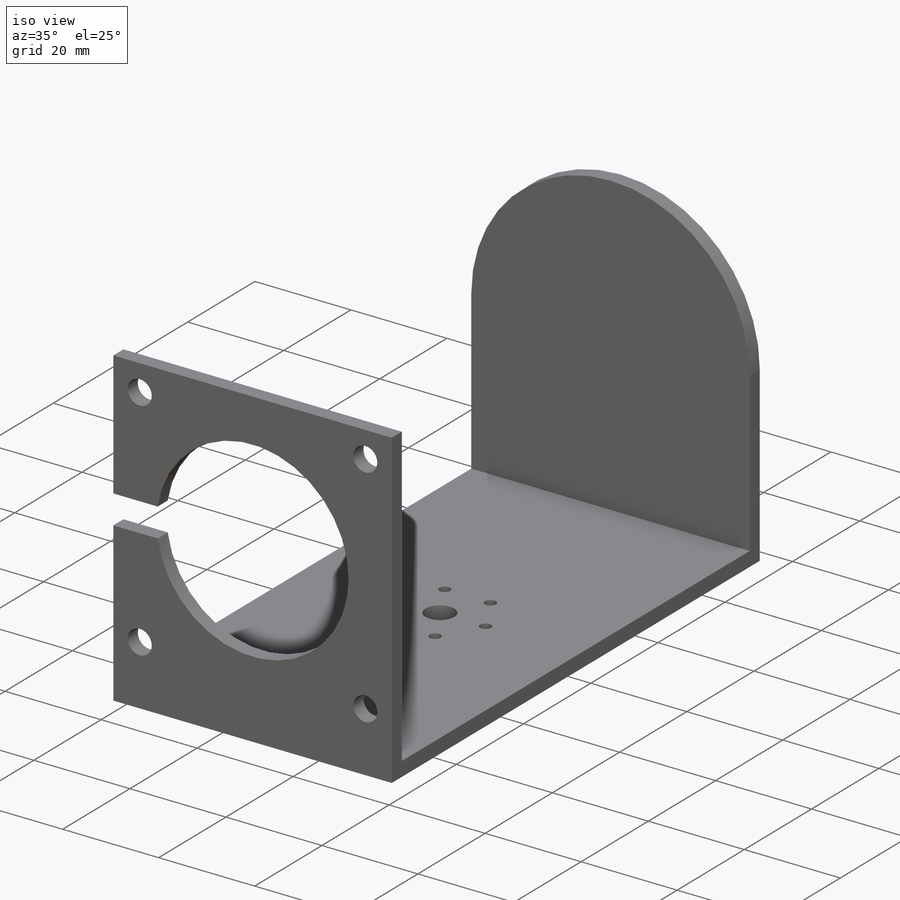
[diagram: iso view]
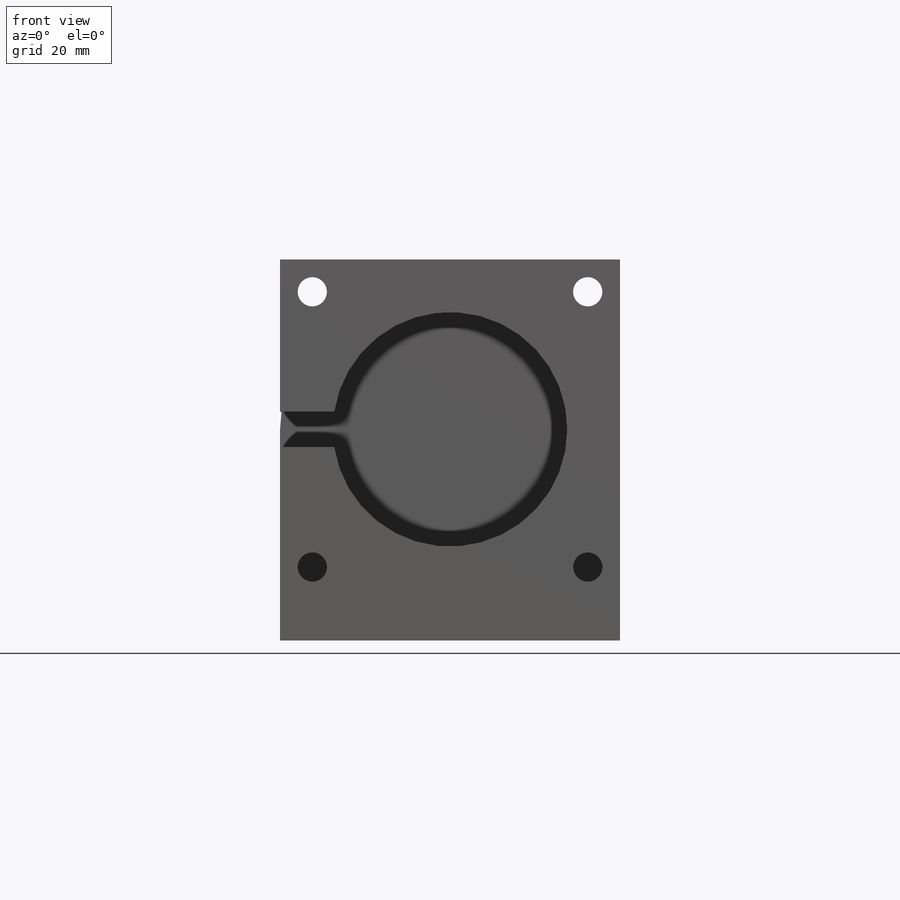
[diagram: front view]
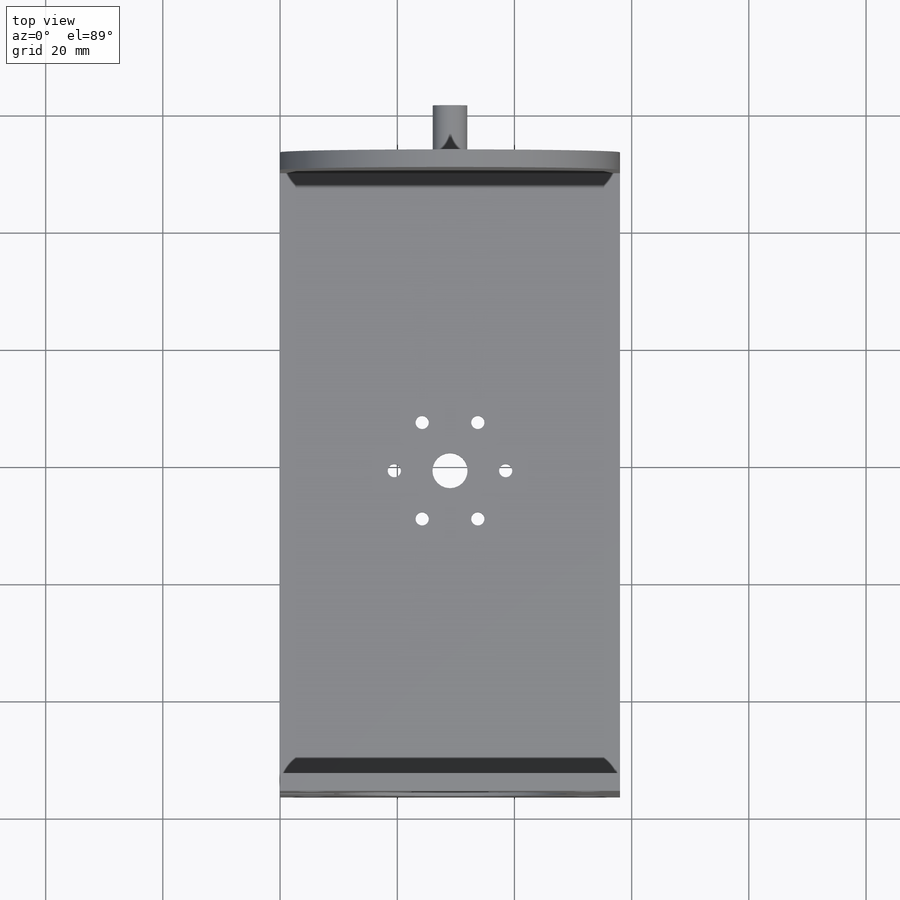
[diagram: top view]
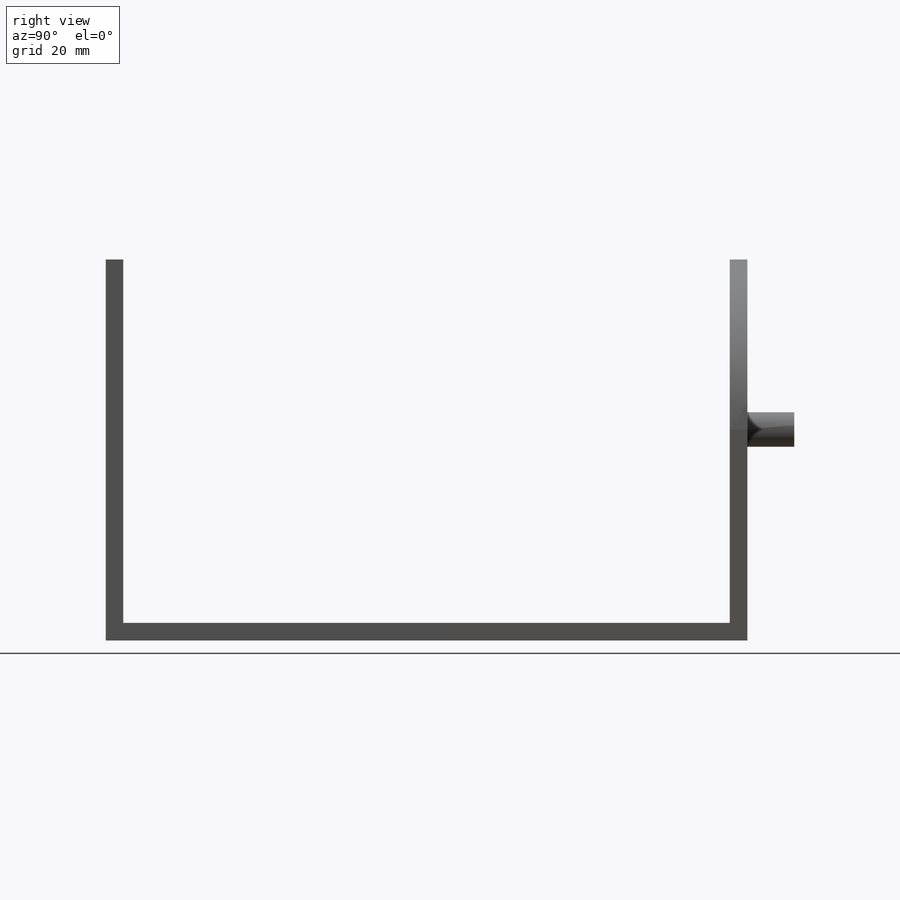
[diagram: right view]
SOLIDWORKS PART (.sldprt)
format: sldprt  version: not decoded by parser v0  size: 345,088 bytes
history: native  units: mm
features: sketch x12, cut_extrude x6, thread x6, extrude x2, material x1, hole x1 (+12 scaffold rows collapsed)
feature tree (40):
  scaffold x12  (default folders/planes/origin — collapsed)
  material  "1060 Alloy"
  sketch  "Sketch1"  dims[D1=60.0mm D2=103.5mm D3=3.0mm D4=65.0mm D5=109.5mm D6=3.0mm]
  extrude  "Boss-Extrude1"  Depth=58mm
  sketch  "Sketch2"  dims[c1.D4=5.0mm c1.D5=40.0mm c1.D1=5.5mm c1.D2=5.5mm c1.D3=29.0mm c2.D4=~9.854377mm]
  cut_extrude  "Cut-Extrude1"  Depth=58mm
  sketch  "Sketch3"  dims[c1.D2=29.0mm c1.D1=29.0mm c2.D2=~41.012193mm]
  cut_extrude  "Cut-Extrude2"  Depth=58mm
  sketch  "Sketch4"  dims[c1.D2=29.0mm c1.D1=29.0mm c2.D2=~41.012193mm]
  cut_extrude  "Cut-Extrude3"  Depth=58mm
  sketch  "Sketch5"  dims[D1=5.9mm]
  extrude  "Boss-Extrude2"  Depth=8mm
  sketch  "Sketch7"  dims[c1.D1=3.0mm c1.D2=5.5mm c1.D3=~7.281932mm c2.D2=6.0mm c2.D3=6.0mm]
  cut_extrude  "Cut-Extrude5"  Depth=10mm
  sketch  "Sketch13"  dims[D1=53.75mm D2=~37.515594mm]
  sketch  "Sketch18"  dims[D1=19.0mm D2=~31.345057mm]
  hole  "#4-40 Tapped Hole4"  Diameter=2.2606mm Depth=7.6mm
  sketch  "Sketch24"  dims[D1=6.0]
  sketch  "Sketch23"  dims[hole-wizard template sketch: 50 standard entries collapsed; hole parameters above]
  thread  "Hole Thread19"  Diameter=3mm  [1 undecoded]
  thread  "Hole Thread20"  Diameter=3mm  [1 undecoded]
  thread  "Hole Thread21"  Diameter=3mm  [1 undecoded]
  thread  "Hole Thread22"  Diameter=3mm  [1 undecoded]
  thread  "Hole Thread23"  Diameter=3mm  [1 undecoded]
  thread  "Hole Thread24"  Diameter=3mm  [1 undecoded]
  sketch  "Sketch25"  dims[D1=6.0mm]
  cut_extrude  "Cut-Extrude6"  Depth=10mm
  sketch  "Sketch26"  dims[D1=2.0mm D2=103.5mm]
  cut_extrude  "Cut-Extrude7"  Depth=90mm
decode coverage: 27 of 27 modeling features carry decoded parameters
note: ~ marks probable driven/reference dimensions
note: 6 parameter values undecoded
note: suppression state not decoded; provenance and decode notes live in map.json
